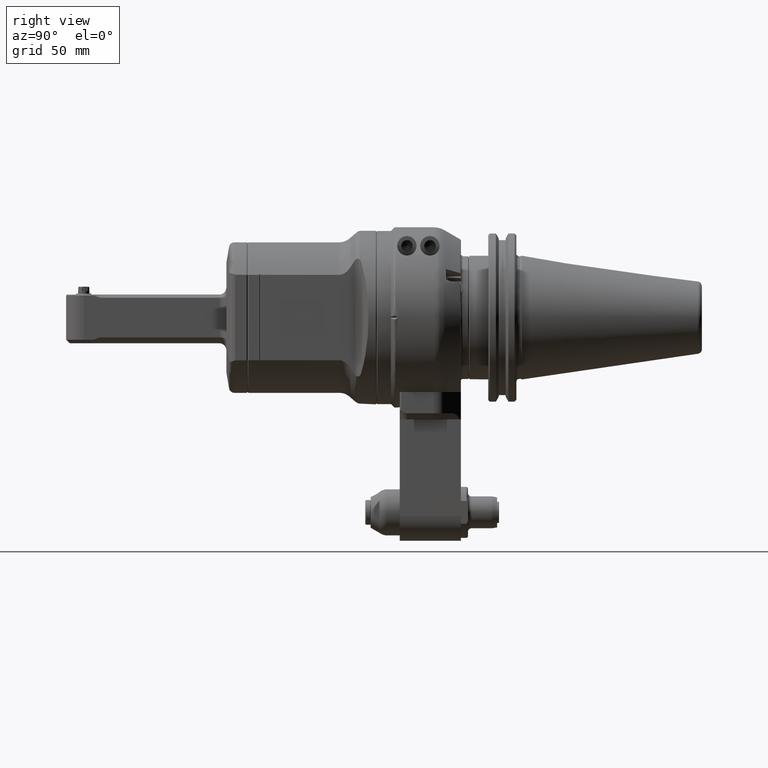
[diagram: clean part render]
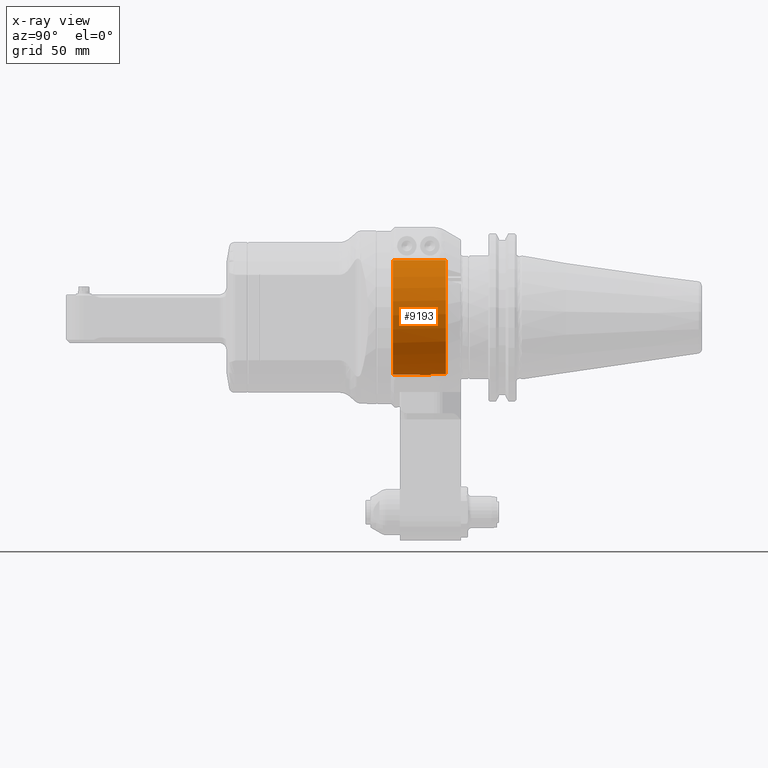
[diagram: x-ray — body ghosted, one internal face saturated and labeled with its STEP entity id]
A machine part, right view, then the same camera in x-ray: the body is ghosted and one INTERNAL B-rep face — a face not visible from any outside direction — is saturated and labeled: STEP entity #9193.
In plain terms, the highlighted cylindrical surface (partial cylindrical patch) has radius 32.5 mm, axis along (0, -1, 0).
Its self-contained STEP definition (entity closure, byte-faithful):
#424=LINE('',#14356,#1076);
#425=LINE('',#14359,#1077);
#426=LINE('',#14363,#1078);
#427=LINE('',#14367,#1079);
#1076=VECTOR('',#11198,8.5);
#1077=VECTOR('',#11201,8.5);
#1078=VECTOR('',#11204,30.);
#1079=VECTOR('',#11207,29.99999999998);
#1686=CYLINDRICAL_SURFACE('',#9884,32.5);
#2211=FACE_OUTER_BOUND('',#2787,.T.);
#2787=EDGE_LOOP('',(#6528,#6529,#6530,#6531,#6532,#6533,#6534,#6535));
#3404=CIRCLE('',#9836,32.5);
#3430=CIRCLE('',#9885,32.5);
#3431=CIRCLE('',#9886,32.5);
#3432=CIRCLE('',#9887,32.5);
#3978=VERTEX_POINT('',#14212);
#3979=VERTEX_POINT('',#14214);
#4017=VERTEX_POINT('',#14354);
#4018=VERTEX_POINT('',#14358);
#4019=VERTEX_POINT('',#14360);
#4020=VERTEX_POINT('',#14362);
#4021=VERTEX_POINT('',#14364);
#4022=VERTEX_POINT('',#14366);
#4926=EDGE_CURVE('',#3979,#3978,#3404,.T.);
#4989=EDGE_CURVE('',#3978,#4017,#424,.T.);
#4990=EDGE_CURVE('',#3979,#4018,#425,.T.);
#4991=EDGE_CURVE('',#4019,#4017,#3430,.T.);
#4992=EDGE_CURVE('',#4019,#4020,#426,.T.);
#4993=EDGE_CURVE('',#4021,#4020,#3431,.T.);
#4994=EDGE_CURVE('',#4021,#4022,#427,.T.);
#4995=EDGE_CURVE('',#4018,#4022,#3432,.T.);
#6528=ORIENTED_EDGE('',*,*,#4990,.F.);
#6529=ORIENTED_EDGE('',*,*,#4926,.T.);
#6530=ORIENTED_EDGE('',*,*,#4989,.T.);
#6531=ORIENTED_EDGE('',*,*,#4991,.F.);
#6532=ORIENTED_EDGE('',*,*,#4992,.T.);
#6533=ORIENTED_EDGE('',*,*,#4993,.F.);
#6534=ORIENTED_EDGE('',*,*,#4994,.T.);
#6535=ORIENTED_EDGE('',*,*,#4995,.F.);
#9193=ADVANCED_FACE('',(#2211),#1686,.F.);
#9836=AXIS2_PLACEMENT_3D('',#14215,#11067,#11068);
#9884=AXIS2_PLACEMENT_3D('',#14357,#11199,#11200);
#9885=AXIS2_PLACEMENT_3D('',#14361,#11202,#11203);
#9886=AXIS2_PLACEMENT_3D('',#14365,#11205,#11206);
#9887=AXIS2_PLACEMENT_3D('',#14368,#11208,#11209);
#11067=DIRECTION('center_axis',(0.,1.,0.));
#11068=DIRECTION('ref_axis',(0.164179104477598,0.,-0.986430545782588));
#11198=DIRECTION('',(0.,1.,0.));
#11199=DIRECTION('center_axis',(0.,-1.,0.));
#11200=DIRECTION('ref_axis',(1.38678298153134E-13,0.,-1.));
#11201=DIRECTION('',(0.,1.,0.));
#11202=DIRECTION('center_axis',(0.,-1.,0.));
#11203=DIRECTION('ref_axis',(-0.0461538461538519,0.,0.998934343430642));
#11204=DIRECTION('',(0.,-1.,0.));
#11205=DIRECTION('center_axis',(0.,1.,0.));
#11206=DIRECTION('ref_axis',(0.,0.,-1.));
#11207=DIRECTION('',(3.148370453234E-13,1.,-1.421085471521E-14));
#11208=DIRECTION('center_axis',(0.,-1.,0.));
#11209=DIRECTION('ref_axis',(0.164179104477598,0.,-0.986430545782588));
#14212=CARTESIAN_POINT('',(-5.335820895522,22.5,-32.05899273793));
#14214=CARTESIAN_POINT('',(5.335820895522,22.5,-32.05899273793));
#14215=CARTESIAN_POINT('Origin',(0.,22.5,0.));
#14354=CARTESIAN_POINT('',(-5.335820895522,31.,-32.05899273793));
#14356=CARTESIAN_POINT('',(-5.335820895522,22.5,-32.05899273793));
#14357=CARTESIAN_POINT('Origin',(0.,16.5,0.));
#14358=CARTESIAN_POINT('',(5.335820895522,31.,-32.05899273793));
#14359=CARTESIAN_POINT('',(5.335820895522,22.5,-32.05899273793));
#14360=CARTESIAN_POINT('',(-1.5,31.,32.4653661615));
#14361=CARTESIAN_POINT('Origin',(0.,31.,0.));
#14362=CARTESIAN_POINT('',(-1.5,1.,32.4653661615));
#14363=CARTESIAN_POINT('',(-1.5,31.,32.4653661615));
#14364=CARTESIAN_POINT('',(1.499999999991,1.000000000023,32.4653661615));
#14365=CARTESIAN_POINT('Origin',(0.,1.,0.));
#14366=CARTESIAN_POINT('',(1.5,31.,32.4653661615));
#14367=CARTESIAN_POINT('',(1.499999999991,1.000000000023,32.4653661615));
#14368=CARTESIAN_POINT('Origin',(0.,31.,0.));